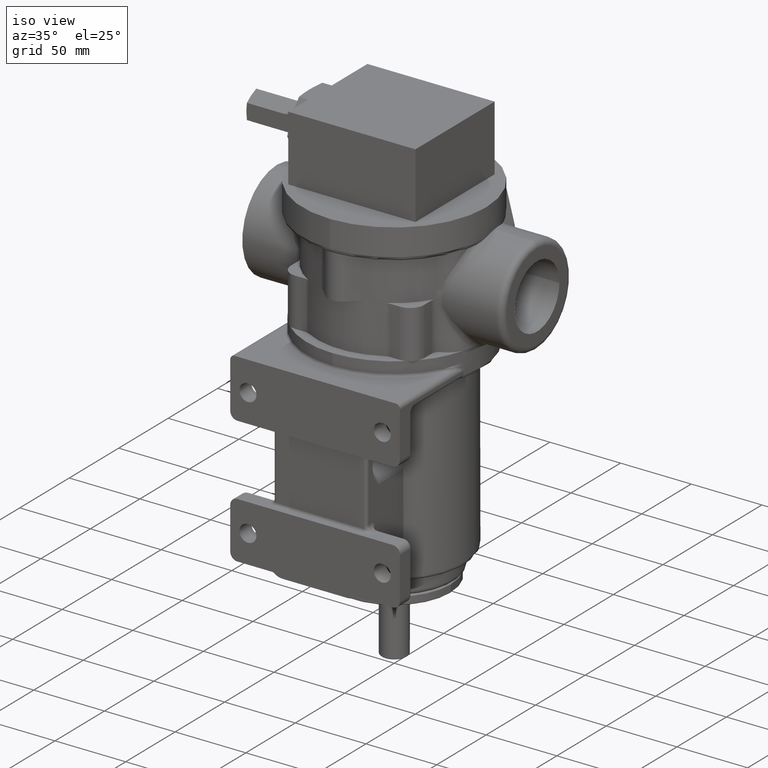
[diagram: clean part render]
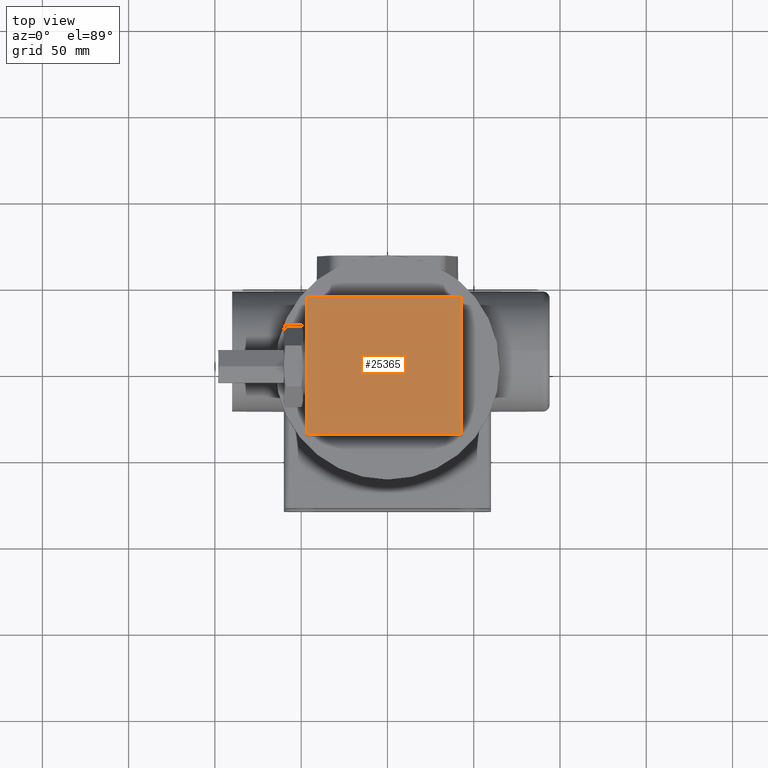
[diagram: tour spotlight — one face highlighted and labeled with its STEP entity id]
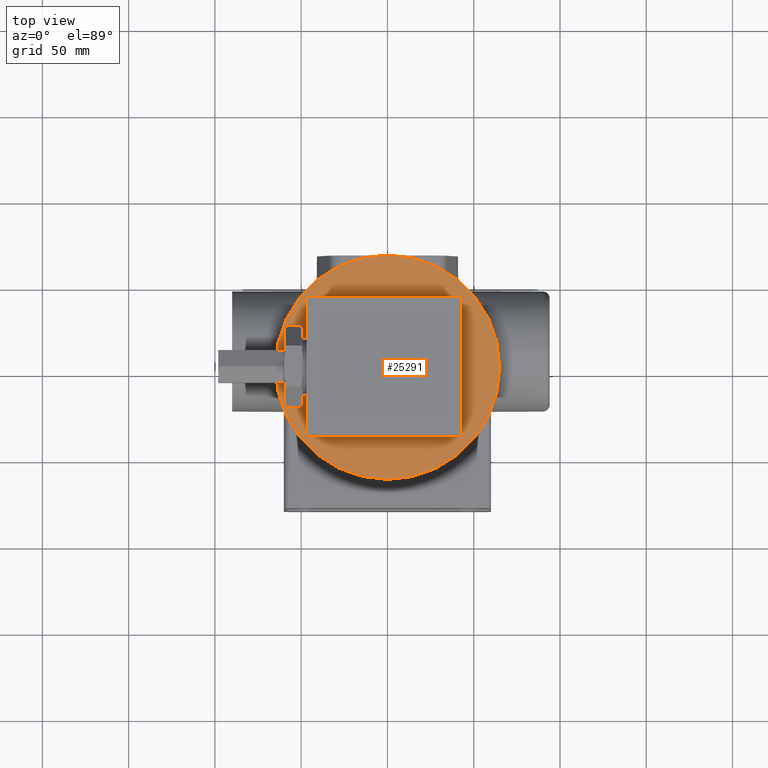
[diagram: tour spotlight — one face highlighted and labeled with its STEP entity id]
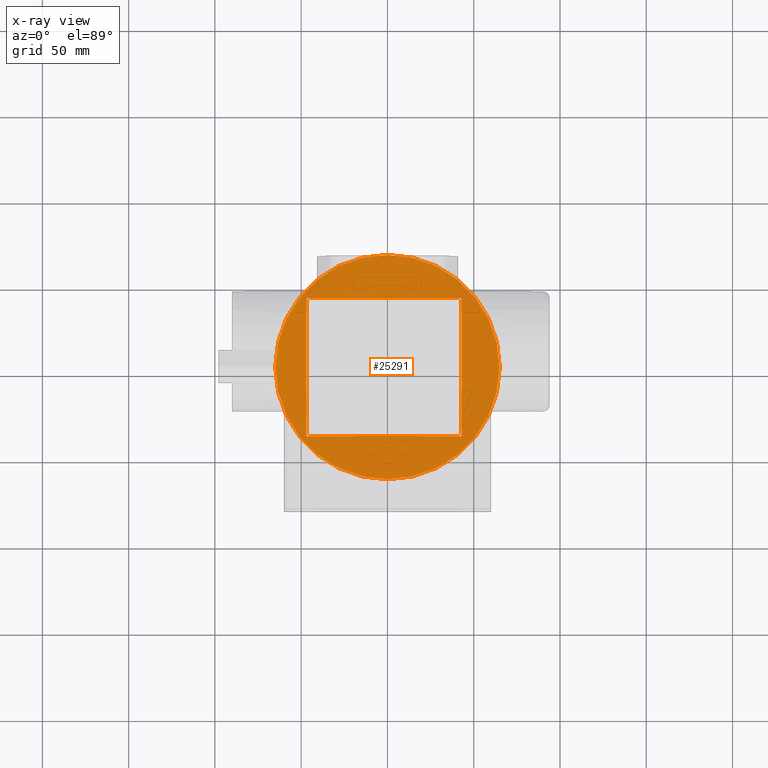
[diagram: x-ray of the same camera — body ghosted, this tour face saturated]
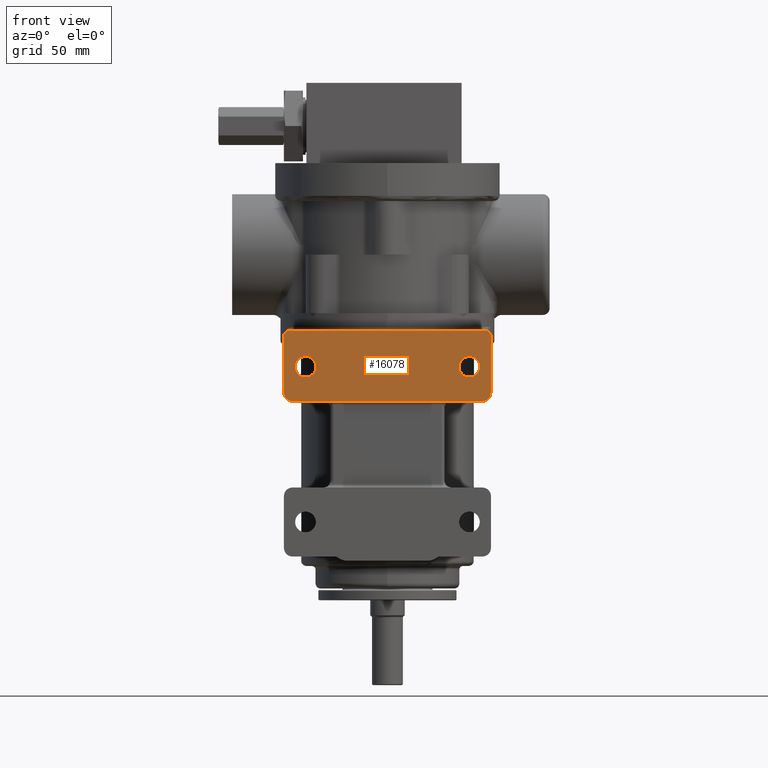
[diagram: tour spotlight — one face highlighted and labeled with its STEP entity id]
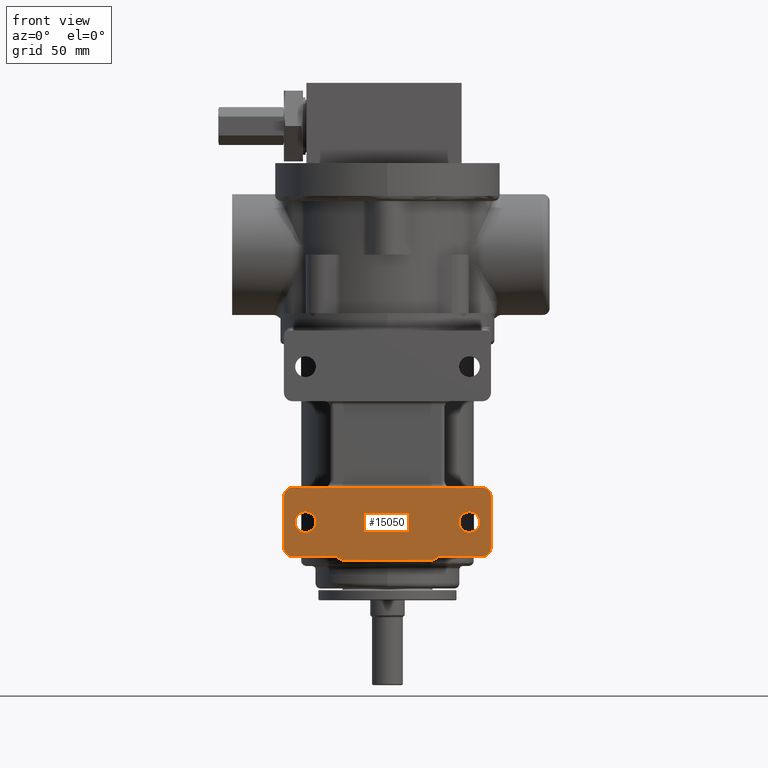
[diagram: tour spotlight — one face highlighted and labeled with its STEP entity id]
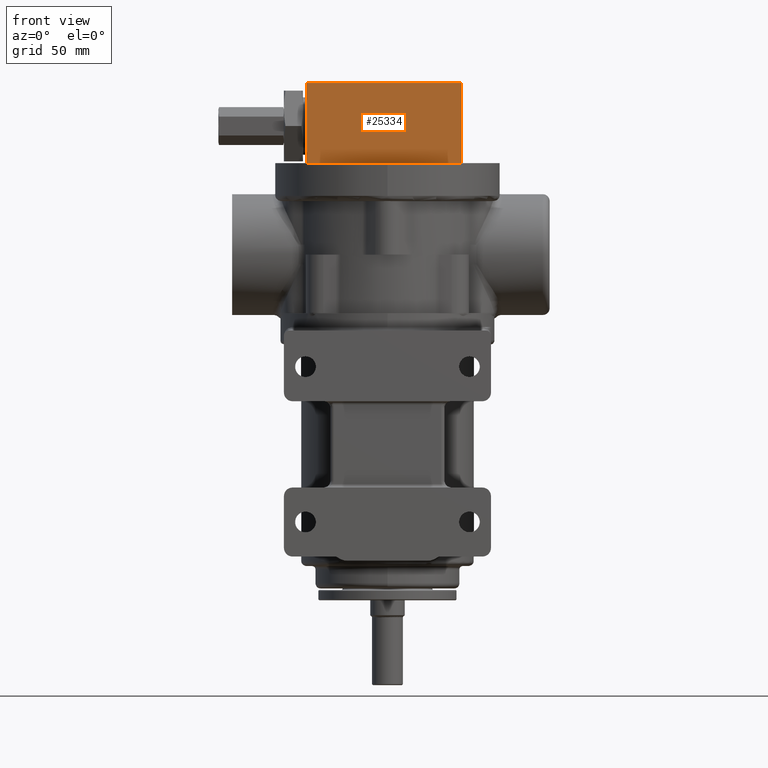
[diagram: tour spotlight — one face highlighted and labeled with its STEP entity id]
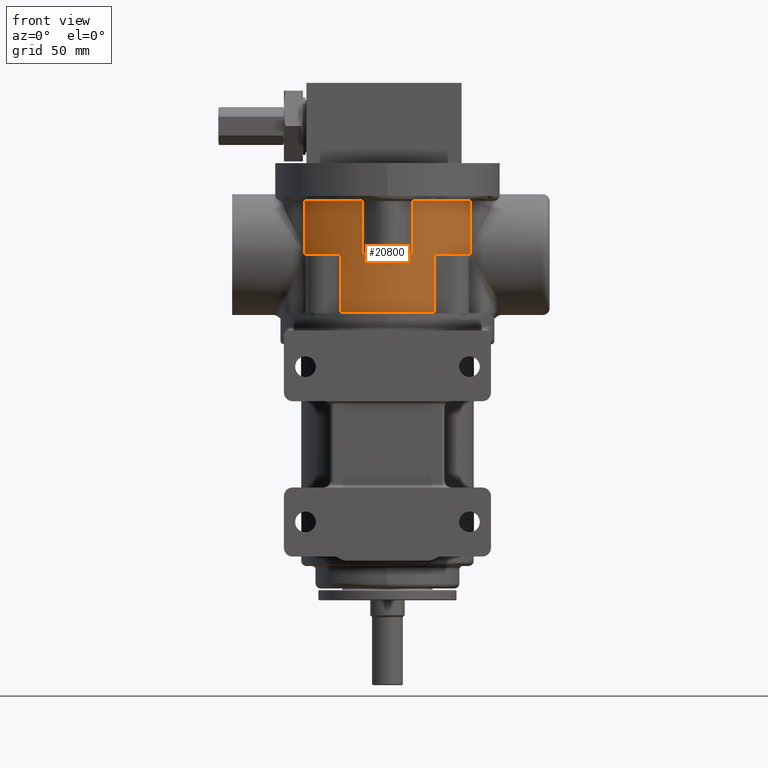
[diagram: tour spotlight — one face highlighted and labeled with its STEP entity id]
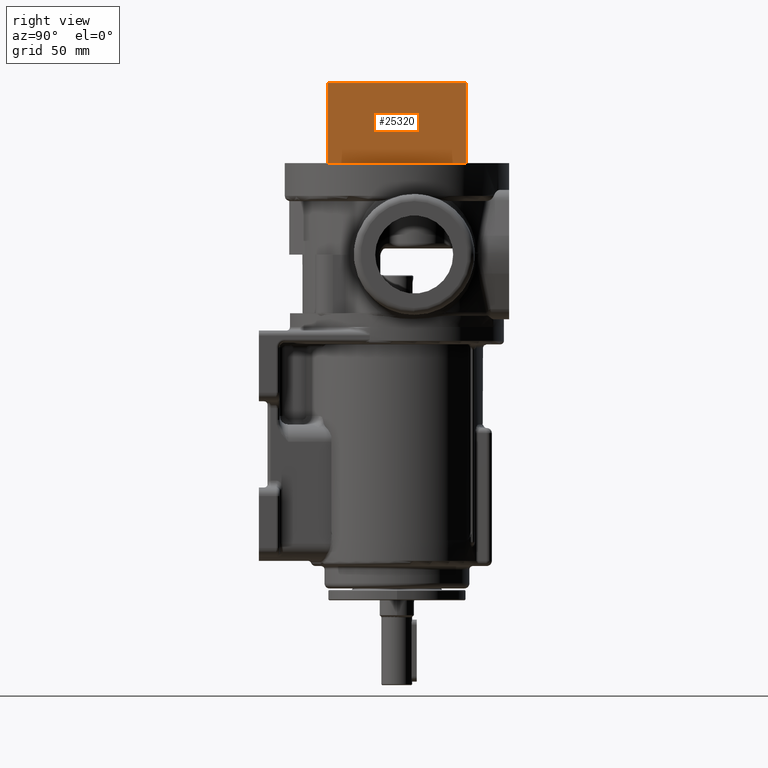
[diagram: tour spotlight — one face highlighted and labeled with its STEP entity id]
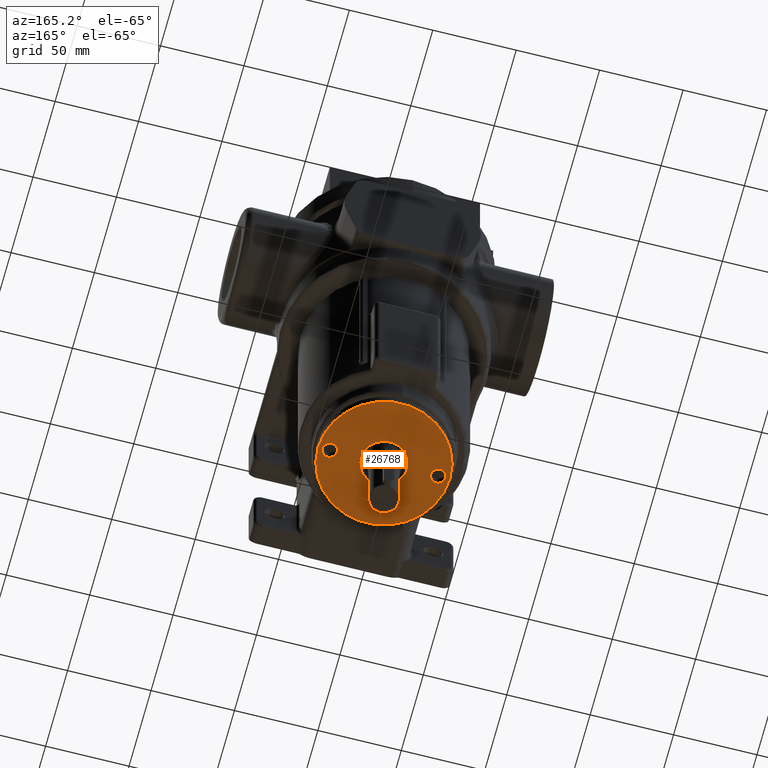
[diagram: tour spotlight — one face highlighted and labeled with its STEP entity id]
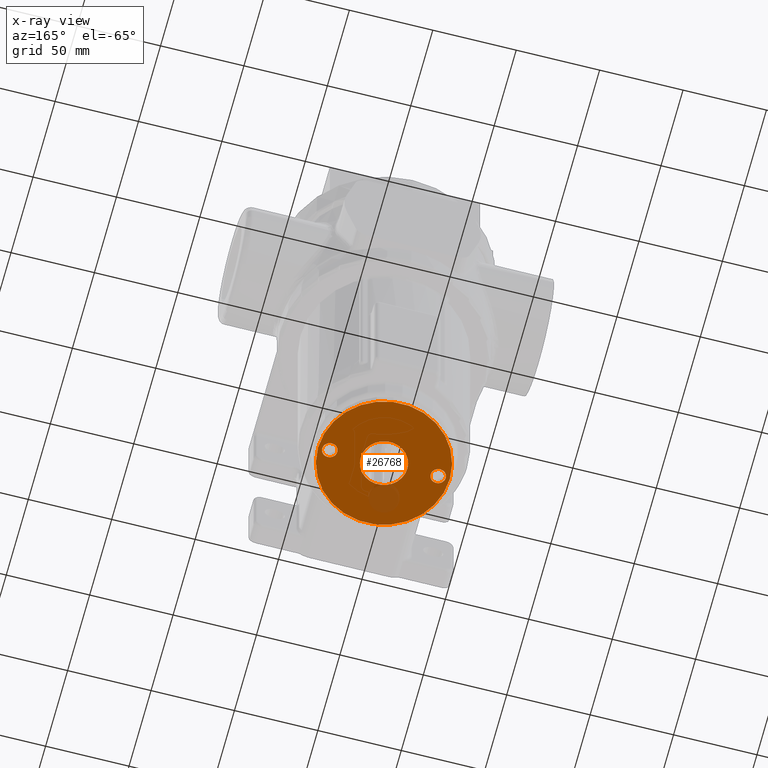
[diagram: x-ray of the same camera — body ghosted, this tour face saturated]
A machine part: a face-by-face anatomy tour. The part has 508 B-rep faces; the first image is the clean iso view, then the 8 largest visible faces are spotlighted one at a time (largest first), each with its STEP entity span.

Face 1 — top view, entity #25365. In plain terms, the highlighted planar face has unit normal (0, 0, 1).
Definition (entity closure, byte-faithful):
#9094=DIRECTION('',(-1.E0,0.E0,0.E0));
#9095=VECTOR('',#9094,9.E1);
#9096=CARTESIAN_POINT('',(4.3E1,4.E1,1.415E2));
#9097=LINE('',#9096,#9095);
#9098=DIRECTION('',(0.E0,1.E0,0.E0));
#9099=VECTOR('',#9098,8.E1);
#9100=CARTESIAN_POINT('',(4.3E1,-4.E1,1.415E2));
#9101=LINE('',#9100,#9099);
#9102=DIRECTION('',(1.E0,0.E0,0.E0));
#9103=VECTOR('',#9102,9.E1);
#9104=CARTESIAN_POINT('',(-4.7E1,-4.E1,1.415E2));
#9105=LINE('',#9104,#9103);
#9106=DIRECTION('',(0.E0,-1.E0,0.E0));
#9107=VECTOR('',#9106,8.E1);
#9108=CARTESIAN_POINT('',(-4.7E1,4.E1,1.415E2));
#9109=LINE('',#9108,#9107);
#12818=CARTESIAN_POINT('',(4.3E1,4.E1,1.415E2));
#12819=CARTESIAN_POINT('',(-4.7E1,4.E1,1.415E2));
#12820=VERTEX_POINT('',#12818);
#12821=VERTEX_POINT('',#12819);
#12822=CARTESIAN_POINT('',(-4.7E1,-4.E1,1.415E2));
#12823=VERTEX_POINT('',#12822);
#12824=CARTESIAN_POINT('',(4.3E1,-4.E1,1.415E2));
#12825=VERTEX_POINT('',#12824);
#25354=CARTESIAN_POINT('',(-2.E0,0.E0,1.415E2));
#25355=DIRECTION('',(0.E0,0.E0,1.E0));
#25356=DIRECTION('',(0.E0,-1.E0,0.E0));
#25357=AXIS2_PLACEMENT_3D('',#25354,#25355,#25356);
#25358=PLANE('',#25357);
#25359=ORIENTED_EDGE('',*,*,#25300,.F.);
#25360=ORIENTED_EDGE('',*,*,#25315,.F.);
#25361=ORIENTED_EDGE('',*,*,#25329,.F.);
#25362=ORIENTED_EDGE('',*,*,#25342,.F.);
#25363=EDGE_LOOP('',(#25359,#25360,#25361,#25362));
#25364=FACE_OUTER_BOUND('',#25363,.F.);
#25365=ADVANCED_FACE('',(#25364),#25358,.T.);
#25300=EDGE_CURVE('',#12820,#12821,#9097,.T.);
#25315=EDGE_CURVE('',#12825,#12820,#9101,.T.);
#25329=EDGE_CURVE('',#12823,#12825,#9105,.T.);
#25342=EDGE_CURVE('',#12821,#12823,#9109,.T.);

Face 2 — top view, entity #25291. An x-ray twin of the same camera follows (body ghosted, this face saturated) — the face is partly hidden behind the body. In plain terms, the highlighted planar face has unit normal (0, 0, 1).
Definition (entity closure, byte-faithful):
#5365=CARTESIAN_POINT('',(0.E0,0.E0,9.5E1));
#5366=DIRECTION('',(0.E0,0.E0,-1.E0));
#5367=DIRECTION('',(0.E0,1.E0,0.E0));
#5368=AXIS2_PLACEMENT_3D('',#5365,#5366,#5367);
#5808=CARTESIAN_POINT('',(0.E0,0.E0,9.5E1));
#5809=DIRECTION('',(0.E0,0.E0,1.E0));
#5810=DIRECTION('',(0.E0,1.E0,0.E0));
#5811=AXIS2_PLACEMENT_3D('',#5808,#5809,#5810);
#9052=DIRECTION('',(-1.E0,0.E0,0.E0));
#9053=VECTOR('',#9052,9.E1);
#9054=CARTESIAN_POINT('',(4.3E1,4.E1,9.5E1));
#9055=LINE('',#9054,#9053);
#9056=DIRECTION('',(0.E0,-1.E0,0.E0));
#9057=VECTOR('',#9056,8.E1);
#9058=CARTESIAN_POINT('',(-4.7E1,4.E1,9.5E1));
#9059=LINE('',#9058,#9057);
#9060=DIRECTION('',(1.E0,0.E0,0.E0));
#9061=VECTOR('',#9060,9.E1);
#9062=CARTESIAN_POINT('',(-4.7E1,-4.E1,9.5E1));
#9063=LINE('',#9062,#9061);
#9064=DIRECTION('',(0.E0,1.E0,0.E0));
#9065=VECTOR('',#9064,8.E1);
#9066=CARTESIAN_POINT('',(4.3E1,-4.E1,9.5E1));
#9067=LINE('',#9066,#9065);
#12694=CARTESIAN_POINT('',(0.E0,6.5E1,9.5E1));
#12695=CARTESIAN_POINT('',(0.E0,-6.5E1,9.5E1));
#12696=VERTEX_POINT('',#12694);
#12697=VERTEX_POINT('',#12695);
#12826=CARTESIAN_POINT('',(4.3E1,4.E1,9.5E1));
#12827=CARTESIAN_POINT('',(-4.7E1,4.E1,9.5E1));
#12828=VERTEX_POINT('',#12826);
#12829=VERTEX_POINT('',#12827);
#12830=CARTESIAN_POINT('',(-4.7E1,-4.E1,9.5E1));
#12831=VERTEX_POINT('',#12830);
#12832=CARTESIAN_POINT('',(4.3E1,-4.E1,9.5E1));
#12833=VERTEX_POINT('',#12832);
#25272=CARTESIAN_POINT('',(0.E0,0.E0,9.5E1));
#25273=DIRECTION('',(0.E0,0.E0,1.E0));
#25274=DIRECTION('',(0.E0,-1.E0,0.E0));
#25275=AXIS2_PLACEMENT_3D('',#25272,#25273,#25274);
#25276=PLANE('',#25275);
#25277=ORIENTED_EDGE('',*,*,#20872,.F.);
#25278=ORIENTED_EDGE('',*,*,#20037,.T.);
#25279=EDGE_LOOP('',(#25277,#25278));
#25280=FACE_OUTER_BOUND('',#25279,.F.);
#25282=ORIENTED_EDGE('',*,*,#25281,.T.);
#25284=ORIENTED_EDGE('',*,*,#25283,.T.);
#25286=ORIENTED_EDGE('',*,*,#25285,.T.);
#25288=ORIENTED_EDGE('',*,*,#25287,.T.);
#25289=EDGE_LOOP('',(#25282,#25284,#25286,#25288));
#25290=FACE_BOUND('',#25289,.F.);
#25291=ADVANCED_FACE('',(#25280,#25290),#25276,.T.);
#5369=CIRCLE('',#5368,6.5E1);
#5812=CIRCLE('',#5811,6.5E1);
#20037=EDGE_CURVE('',#12696,#12697,#5369,.T.);
#20872=EDGE_CURVE('',#12696,#12697,#5812,.T.);
#25281=EDGE_CURVE('',#12828,#12829,#9055,.T.);
#25283=EDGE_CURVE('',#12829,#12831,#9059,.T.);
#25285=EDGE_CURVE('',#12831,#12833,#9063,.T.);
#25287=EDGE_CURVE('',#12833,#12828,#9067,.T.);

Face 3 — front view, entity #16078. In plain terms, the highlighted planar face has unit normal (0, 1, 0).
Definition (entity closure, byte-faithful):
#2551=DIRECTION('',(0.E0,0.E0,1.E0));
#2552=VECTOR('',#2551,3.3E1);
#2553=CARTESIAN_POINT('',(-6.E1,-8.E1,-3.8E1));
#2554=LINE('',#2553,#2552);
#2580=CARTESIAN_POINT('',(-4.75E1,-8.E1,-2.3E1));
#2581=DIRECTION('',(0.E0,-1.E0,0.E0));
#2582=DIRECTION('',(0.E0,0.E0,1.E0));
#2583=AXIS2_PLACEMENT_3D('',#2580,#2581,#2582);
#2585=CARTESIAN_POINT('',(-4.75E1,-8.E1,-2.3E1));
#2586=DIRECTION('',(0.E0,-1.E0,0.E0));
#2587=DIRECTION('',(0.E0,0.E0,-1.E0));
#2588=AXIS2_PLACEMENT_3D('',#2585,#2586,#2587);
#2590=CARTESIAN_POINT('',(4.75E1,-8.E1,-2.3E1));
#2591=DIRECTION('',(0.E0,-1.E0,0.E0));
#2592=DIRECTION('',(0.E0,0.E0,1.E0));
#2593=AXIS2_PLACEMENT_3D('',#2590,#2591,#2592);
#2595=CARTESIAN_POINT('',(4.75E1,-8.E1,-2.3E1));
#2596=DIRECTION('',(0.E0,-1.E0,0.E0));
#2597=DIRECTION('',(0.E0,0.E0,-1.E0));
#2598=AXIS2_PLACEMENT_3D('',#2595,#2596,#2597);
#2600=DIRECTION('',(-1.E0,0.E0,0.E0));
#2601=VECTOR('',#2600,1.1E2);
#2602=CARTESIAN_POINT('',(5.5E1,-8.E1,-4.3E1));
#2603=LINE('',#2602,#2601);
#2680=CARTESIAN_POINT('',(5.5E1,-8.E1,-3.8E1));
#2681=DIRECTION('',(0.E0,-1.E0,0.E0));
#2682=DIRECTION('',(0.E0,0.E0,-1.E0));
#2683=AXIS2_PLACEMENT_3D('',#2680,#2681,#2682);
#2690=DIRECTION('',(0.E0,0.E0,-1.E0));
#2691=VECTOR('',#2690,3.3E1);
#2692=CARTESIAN_POINT('',(6.E1,-8.E1,-5.E0));
#2693=LINE('',#2692,#2691);
#2719=CARTESIAN_POINT('',(5.7E1,-8.E1,-5.E0));
#2720=DIRECTION('',(0.E0,-1.E0,0.E0));
#2721=DIRECTION('',(1.E0,0.E0,0.E0));
#2722=AXIS2_PLACEMENT_3D('',#2719,#2720,#2721);
#2762=DIRECTION('',(1.E0,0.E0,0.E0));
#2763=VECTOR('',#2762,1.14E2);
#2764=CARTESIAN_POINT('',(-5.7E1,-8.E1,-2.E0));
#2765=LINE('',#2764,#2763);
#2774=CARTESIAN_POINT('',(-5.7E1,-8.E1,-5.E0));
#2775=DIRECTION('',(0.E0,-1.E0,0.E0));
#2776=DIRECTION('',(0.E0,0.E0,1.E0));
#2777=AXIS2_PLACEMENT_3D('',#2774,#2775,#2776);
#4546=CARTESIAN_POINT('',(-5.5E1,-8.E1,-3.8E1));
#4547=DIRECTION('',(0.E0,-1.E0,0.E0));
#4548=DIRECTION('',(-1.E0,0.E0,0.E0));
#4549=AXIS2_PLACEMENT_3D('',#4546,#4547,#4548);
#11985=CARTESIAN_POINT('',(5.5E1,-8.E1,-4.3E1));
#11986=CARTESIAN_POINT('',(-5.5E1,-8.E1,-4.3E1));
#11987=VERTEX_POINT('',#11985);
#11988=VERTEX_POINT('',#11986);
#11989=CARTESIAN_POINT('',(-6.E1,-8.E1,-3.8E1));
#11990=CARTESIAN_POINT('',(-6.E1,-8.E1,-5.E0));
#11991=VERTEX_POINT('',#11989);
#11992=VERTEX_POINT('',#11990);
#11993=CARTESIAN_POINT('',(-5.7E1,-8.E1,-2.E0));
#11994=CARTESIAN_POINT('',(5.7E1,-8.E1,-2.E0));
#11995=VERTEX_POINT('',#11993);
#11996=VERTEX_POINT('',#11994);
#11997=CARTESIAN_POINT('',(6.E1,-8.E1,-5.E0));
#11998=CARTESIAN_POINT('',(6.E1,-8.E1,-3.8E1));
#11999=VERTEX_POINT('',#11997);
#12000=VERTEX_POINT('',#11998);
#12017=CARTESIAN_POINT('',(-4.75E1,-8.E1,-1.7E1));
#12018=CARTESIAN_POINT('',(-4.75E1,-8.E1,-2.9E1));
#12019=VERTEX_POINT('',#12017);
#12020=VERTEX_POINT('',#12018);
#12033=CARTESIAN_POINT('',(4.75E1,-8.E1,-1.7E1));
#12034=CARTESIAN_POINT('',(4.75E1,-8.E1,-2.9E1));
#12035=VERTEX_POINT('',#12033);
#12036=VERTEX_POINT('',#12034);
#16044=CARTESIAN_POINT('',(0.E0,-8.E1,0.E0));
#16045=DIRECTION('',(0.E0,1.E0,0.E0));
#16046=DIRECTION('',(-1.E0,0.E0,0.E0));
#16047=AXIS2_PLACEMENT_3D('',#16044,#16045,#16046);
#16048=PLANE('',#16047);
#16050=ORIENTED_EDGE('',*,*,#16049,.T.);
#16052=ORIENTED_EDGE('',*,*,#16051,.F.);
#16053=ORIENTED_EDGE('',*,*,#16028,.T.);
#16055=ORIENTED_EDGE('',*,*,#16054,.F.);
#16057=ORIENTED_EDGE('',*,*,#16056,.T.);
#16059=ORIENTED_EDGE('',*,*,#16058,.F.);
#16061=ORIENTED_EDGE('',*,*,#16060,.T.);
#16063=ORIENTED_EDGE('',*,*,#16062,.F.);
#16064=EDGE_LOOP('',(#16050,#16052,#16053,#16055,#16057,#16059,#16061,#16063));
#16065=FACE_OUTER_BOUND('',#16064,.F.);
#16067=ORIENTED_EDGE('',*,*,#16066,.T.);
#16069=ORIENTED_EDGE('',*,*,#16068,.T.);
#16070=EDGE_LOOP('',(#16067,#16069));
#16071=FACE_BOUND('',#16070,.F.);
#16073=ORIENTED_EDGE('',*,*,#16072,.T.);
#16075=ORIENTED_EDGE('',*,*,#16074,.T.);
#16076=EDGE_LOOP('',(#16073,#16075));
#16077=FACE_BOUND('',#16076,.F.);
#16078=ADVANCED_FACE('',(#16065,#16071,#16077),#16048,.F.);
#2584=CIRCLE('',#2583,6.E0);
#2589=CIRCLE('',#2588,6.E0);
#2594=CIRCLE('',#2593,6.E0);
#2599=CIRCLE('',#2598,6.E0);
#2684=CIRCLE('',#2683,5.E0);
#2723=CIRCLE('',#2722,3.E0);
#2778=CIRCLE('',#2777,3.E0);
#4550=CIRCLE('',#4549,5.E0);
#16028=EDGE_CURVE('',#11991,#11992,#2554,.T.);
#16049=EDGE_CURVE('',#11987,#11988,#2603,.T.);
#16051=EDGE_CURVE('',#11991,#11988,#4550,.T.);
#16054=EDGE_CURVE('',#11995,#11992,#2778,.T.);
#16056=EDGE_CURVE('',#11995,#11996,#2765,.T.);
#16058=EDGE_CURVE('',#11999,#11996,#2723,.T.);
#16060=EDGE_CURVE('',#11999,#12000,#2693,.T.);
#16062=EDGE_CURVE('',#11987,#12000,#2684,.T.);
#16066=EDGE_CURVE('',#12019,#12020,#2584,.T.);
#16068=EDGE_CURVE('',#12020,#12019,#2589,.T.);
#16072=EDGE_CURVE('',#12035,#12036,#2594,.T.);
#16074=EDGE_CURVE('',#12036,#12035,#2599,.T.);

Face 4 — front view, entity #15050. In plain terms, the highlighted planar face has unit normal (0, 1, 0).
Definition (entity closure, byte-faithful):
#1702=CARTESIAN_POINT('',(2.3E1,-8.E1,-1.255E2));
#1703=DIRECTION('',(0.E0,-1.E0,0.E0));
#1704=DIRECTION('',(0.E0,0.E0,-1.E0));
#1705=AXIS2_PLACEMENT_3D('',#1702,#1703,#1704);
#1791=CARTESIAN_POINT('',(-4.75E1,-8.E1,-1.13E2));
#1792=DIRECTION('',(0.E0,-1.E0,0.E0));
#1793=DIRECTION('',(0.E0,0.E0,1.E0));
#1794=AXIS2_PLACEMENT_3D('',#1791,#1792,#1793);
#1796=CARTESIAN_POINT('',(-4.75E1,-8.E1,-1.13E2));
#1797=DIRECTION('',(0.E0,-1.E0,0.E0));
#1798=DIRECTION('',(0.E0,0.E0,-1.E0));
#1799=AXIS2_PLACEMENT_3D('',#1796,#1797,#1798);
#1801=CARTESIAN_POINT('',(4.75E1,-8.E1,-1.13E2));
#1802=DIRECTION('',(0.E0,-1.E0,0.E0));
#1803=DIRECTION('',(0.E0,0.E0,1.E0));
#1804=AXIS2_PLACEMENT_3D('',#1801,#1802,#1803);
#1806=CARTESIAN_POINT('',(4.75E1,-8.E1,-1.13E2));
#1807=DIRECTION('',(0.E0,-1.E0,0.E0));
#1808=DIRECTION('',(0.E0,0.E0,-1.E0));
#1809=AXIS2_PLACEMENT_3D('',#1806,#1807,#1808);
#1811=DIRECTION('',(-1.E0,0.E0,0.E0));
#1812=VECTOR('',#1811,2.466856085069E1);
#1813=CARTESIAN_POINT('',(5.5E1,-8.E1,-1.33E2));
#1814=LINE('',#1813,#1812);
#1827=CARTESIAN_POINT('',(5.5E1,-8.E1,-1.28E2));
#1828=DIRECTION('',(0.E0,-1.E0,0.E0));
#1829=DIRECTION('',(0.E0,0.E0,-1.E0));
#1830=AXIS2_PLACEMENT_3D('',#1827,#1828,#1829);
#1837=DIRECTION('',(0.E0,0.E0,-1.E0));
#1838=VECTOR('',#1837,3.E1);
#1839=CARTESIAN_POINT('',(6.E1,-8.E1,-9.8E1));
#1840=LINE('',#1839,#1838);
#1853=CARTESIAN_POINT('',(5.5E1,-8.E1,-9.8E1));
#1854=DIRECTION('',(0.E0,-1.E0,0.E0));
#1855=DIRECTION('',(1.E0,0.E0,0.E0));
#1856=AXIS2_PLACEMENT_3D('',#1853,#1854,#1855);
#1863=DIRECTION('',(1.E0,0.E0,0.E0));
#1864=VECTOR('',#1863,1.1E2);
#1865=CARTESIAN_POINT('',(-5.5E1,-8.E1,-9.3E1));
#1866=LINE('',#1865,#1864);
#1943=CARTESIAN_POINT('',(-5.5E1,-8.E1,-9.8E1));
#1944=DIRECTION('',(0.E0,-1.E0,0.E0));
#1945=DIRECTION('',(0.E0,0.E0,1.E0));
#1946=AXIS2_PLACEMENT_3D('',#1943,#1944,#1945);
#1953=DIRECTION('',(0.E0,0.E0,1.E0));
#1954=VECTOR('',#1953,3.E1);
#1955=CARTESIAN_POINT('',(-6.E1,-8.E1,-1.28E2));
#1956=LINE('',#1955,#1954);
#1969=CARTESIAN_POINT('',(-5.5E1,-8.E1,-1.28E2));
#1970=DIRECTION('',(0.E0,-1.E0,0.E0));
#1971=DIRECTION('',(-1.E0,0.E0,0.E0));
#1972=AXIS2_PLACEMENT_3D('',#1969,#1970,#1971);
#1979=DIRECTION('',(-1.E0,0.E0,0.E0));
#1980=VECTOR('',#1979,2.466856085069E1);
#1981=CARTESIAN_POINT('',(-3.033143914931E1,-8.E1,-1.33E2));
#1982=LINE('',#1981,#1980);
#1995=CARTESIAN_POINT('',(-3.033143914931E1,-8.E1,-1.35E2));
#1996=DIRECTION('',(0.E0,-1.E0,0.E0));
#1997=DIRECTION('',(6.109532584808E-1,0.E0,7.916666697239E-1));
#1998=AXIS2_PLACEMENT_3D('',#1995,#1996,#1997);
#2014=CARTESIAN_POINT('',(-2.3E1,-8.E1,-1.255E2));
#2015=DIRECTION('',(0.E0,1.E0,0.E0));
#2016=DIRECTION('',(0.E0,0.E0,-1.E0));
#2017=AXIS2_PLACEMENT_3D('',#2014,#2015,#2016);
#2103=DIRECTION('',(-1.E0,0.E0,0.E0));
#2104=VECTOR('',#2103,4.6E1);
#2105=CARTESIAN_POINT('',(2.3E1,-8.E1,-1.355E2));
#2106=LINE('',#2105,#2104);
#5098=CARTESIAN_POINT('',(3.033143914931E1,-8.E1,-1.35E2));
#5099=DIRECTION('',(0.E0,1.E0,0.E0));
#5100=DIRECTION('',(-6.109532584808E-1,0.E0,7.916666697239E-1));
#5101=AXIS2_PLACEMENT_3D('',#5098,#5099,#5100);
#11965=CARTESIAN_POINT('',(5.5E1,-8.E1,-1.33E2));
#11966=CARTESIAN_POINT('',(3.033143914931E1,-8.E1,-1.33E2));
#11967=VERTEX_POINT('',#11965);
#11968=VERTEX_POINT('',#11966);
#11969=CARTESIAN_POINT('',(-3.033143914931E1,-8.E1,-1.33E2));
#11970=CARTESIAN_POINT('',(-5.5E1,-8.E1,-1.33E2));
#11971=VERTEX_POINT('',#11969);
#11972=VERTEX_POINT('',#11970);
#11973=CARTESIAN_POINT('',(-6.E1,-8.E1,-1.28E2));
#11974=CARTESIAN_POINT('',(-6.E1,-8.E1,-9.8E1));
#11975=VERTEX_POINT('',#11973);
#11976=VERTEX_POINT('',#11974);
#11977=CARTESIAN_POINT('',(-5.5E1,-8.E1,-9.3E1));
#11978=CARTESIAN_POINT('',(5.5E1,-8.E1,-9.3E1));
#11979=VERTEX_POINT('',#11977);
#11980=VERTEX_POINT('',#11978);
#11981=CARTESIAN_POINT('',(6.E1,-8.E1,-9.8E1));
#11982=CARTESIAN_POINT('',(6.E1,-8.E1,-1.28E2));
#11983=VERTEX_POINT('',#11981);
#11984=VERTEX_POINT('',#11982);
#12001=CARTESIAN_POINT('',(2.3E1,-8.E1,-1.355E2));
#12002=CARTESIAN_POINT('',(-2.3E1,-8.E1,-1.355E2));
#12003=VERTEX_POINT('',#12001);
#12004=VERTEX_POINT('',#12002);
#12005=CARTESIAN_POINT('',(-2.910953263235E1,-8.E1,-1.334166666606E2));
#12006=VERTEX_POINT('',#12005);
#12007=CARTESIAN_POINT('',(2.910953263235E1,-8.E1,-1.334166666606E2));
#12008=VERTEX_POINT('',#12007);
#12025=CARTESIAN_POINT('',(-4.75E1,-8.E1,-1.07E2));
#12026=CARTESIAN_POINT('',(-4.75E1,-8.E1,-1.19E2));
#12027=VERTEX_POINT('',#12025);
#12028=VERTEX_POINT('',#12026);
#12041=CARTESIAN_POINT('',(4.75E1,-8.E1,-1.07E2));
#12042=CARTESIAN_POINT('',(4.75E1,-8.E1,-1.19E2));
#12043=VERTEX_POINT('',#12041);
#12044=VERTEX_POINT('',#12042);
#15004=CARTESIAN_POINT('',(0.E0,-8.E1,0.E0));
#15005=DIRECTION('',(0.E0,1.E0,0.E0));
#15006=DIRECTION('',(-1.E0,0.E0,0.E0));
#15007=AXIS2_PLACEMENT_3D('',#15004,#15005,#15006);
#15008=PLANE('',#15007);
#15010=ORIENTED_EDGE('',*,*,#15009,.T.);
#15012=ORIENTED_EDGE('',*,*,#15011,.F.);
#15013=ORIENTED_EDGE('',*,*,#14986,.F.);
#15015=ORIENTED_EDGE('',*,*,#15014,.T.);
#15017=ORIENTED_EDGE('',*,*,#15016,.T.);
#15019=ORIENTED_EDGE('',*,*,#15018,.T.);
#15021=ORIENTED_EDGE('',*,*,#15020,.T.);
#15023=ORIENTED_EDGE('',*,*,#15022,.F.);
#15025=ORIENTED_EDGE('',*,*,#15024,.T.);
#15027=ORIENTED_EDGE('',*,*,#15026,.F.);
#15029=ORIENTED_EDGE('',*,*,#15028,.T.);
#15031=ORIENTED_EDGE('',*,*,#15030,.F.);
#15033=ORIENTED_EDGE('',*,*,#15032,.T.);
#15035=ORIENTED_EDGE('',*,*,#15034,.F.);
#15036=EDGE_LOOP('',(#15010,#15012,#15013,#15015,#15017,#15019,#15021,#15023,
#15025,#15027,#15029,#15031,#15033,#15035));
#15037=FACE_OUTER_BOUND('',#15036,.F.);
#15039=ORIENTED_EDGE('',*,*,#15038,.T.);
#15041=ORIENTED_EDGE('',*,*,#15040,.T.);
#15042=EDGE_LOOP('',(#15039,#15041));
#15043=FACE_BOUND('',#15042,.F.);
#15045=ORIENTED_EDGE('',*,*,#15044,.T.);
#15047=ORIENTED_EDGE('',*,*,#15046,.T.);
#15048=EDGE_LOOP('',(#15045,#15047));
#15049=FACE_BOUND('',#15048,.F.);
#15050=ADVANCED_FACE('',(#15037,#15043,#15049),#15008,.F.);
#1706=CIRCLE('',#1705,1.E1);
#1795=CIRCLE('',#1794,6.E0);
#1800=CIRCLE('',#1799,6.E0);
#1805=CIRCLE('',#1804,6.E0);
#1810=CIRCLE('',#1809,6.E0);
#1831=CIRCLE('',#1830,5.E0);
#1857=CIRCLE('',#1856,5.E0);
#1947=CIRCLE('',#1946,5.E0);
#1973=CIRCLE('',#1972,5.E0);
#1999=CIRCLE('',#1998,2.E0);
#2018=CIRCLE('',#2017,1.E1);
#5102=CIRCLE('',#5101,2.E0);
#14986=EDGE_CURVE('',#12003,#12008,#1706,.T.);
#15009=EDGE_CURVE('',#11967,#11968,#1814,.T.);
#15011=EDGE_CURVE('',#12008,#11968,#5102,.T.);
#15014=EDGE_CURVE('',#12003,#12004,#2106,.T.);
#15016=EDGE_CURVE('',#12004,#12006,#2018,.T.);
#15018=EDGE_CURVE('',#12006,#11971,#1999,.T.);
#15020=EDGE_CURVE('',#11971,#11972,#1982,.T.);
#15022=EDGE_CURVE('',#11975,#11972,#1973,.T.);
#15024=EDGE_CURVE('',#11975,#11976,#1956,.T.);
#15026=EDGE_CURVE('',#11979,#11976,#1947,.T.);
#15028=EDGE_CURVE('',#11979,#11980,#1866,.T.);
#15030=EDGE_CURVE('',#11983,#11980,#1857,.T.);
#15032=EDGE_CURVE('',#11983,#11984,#1840,.T.);
#15034=EDGE_CURVE('',#11967,#11984,#1831,.T.);
#15038=EDGE_CURVE('',#12027,#12028,#1795,.T.);
#15040=EDGE_CURVE('',#12028,#12027,#1800,.T.);
#15044=EDGE_CURVE('',#12043,#12044,#1805,.T.);
#15046=EDGE_CURVE('',#12044,#12043,#1810,.T.);

Face 5 — front view, entity #25334. In plain terms, the highlighted planar face has unit normal (0, -1, 0).
Definition (entity closure, byte-faithful):
#9060=DIRECTION('',(1.E0,0.E0,0.E0));
#9061=VECTOR('',#9060,9.E1);
#9062=CARTESIAN_POINT('',(-4.7E1,-4.E1,9.5E1));
#9063=LINE('',#9062,#9061);
#9072=DIRECTION('',(0.E0,0.E0,1.E0));
#9073=VECTOR('',#9072,4.65E1);
#9074=CARTESIAN_POINT('',(4.3E1,-4.E1,9.5E1));
#9075=LINE('',#9074,#9073);
#9076=DIRECTION('',(0.E0,0.E0,1.E0));
#9077=VECTOR('',#9076,4.65E1);
#9078=CARTESIAN_POINT('',(-4.7E1,-4.E1,9.5E1));
#9079=LINE('',#9078,#9077);
#9102=DIRECTION('',(1.E0,0.E0,0.E0));
#9103=VECTOR('',#9102,9.E1);
#9104=CARTESIAN_POINT('',(-4.7E1,-4.E1,1.415E2));
#9105=LINE('',#9104,#9103);
#12822=CARTESIAN_POINT('',(-4.7E1,-4.E1,1.415E2));
#12823=VERTEX_POINT('',#12822);
#12824=CARTESIAN_POINT('',(4.3E1,-4.E1,1.415E2));
#12825=VERTEX_POINT('',#12824);
#12830=CARTESIAN_POINT('',(-4.7E1,-4.E1,9.5E1));
#12831=VERTEX_POINT('',#12830);
#12832=CARTESIAN_POINT('',(4.3E1,-4.E1,9.5E1));
#12833=VERTEX_POINT('',#12832);
#25321=CARTESIAN_POINT('',(-4.7E1,-4.E1,9.25E1));
#25322=DIRECTION('',(0.E0,-1.E0,0.E0));
#25323=DIRECTION('',(1.E0,0.E0,0.E0));
#25324=AXIS2_PLACEMENT_3D('',#25321,#25322,#25323);
#25325=PLANE('',#25324);
#25326=ORIENTED_EDGE('',*,*,#25285,.F.);
#25328=ORIENTED_EDGE('',*,*,#25327,.T.);
#25330=ORIENTED_EDGE('',*,*,#25329,.T.);
#25331=ORIENTED_EDGE('',*,*,#25313,.F.);
#25332=EDGE_LOOP('',(#25326,#25328,#25330,#25331));
#25333=FACE_OUTER_BOUND('',#25332,.F.);
#25334=ADVANCED_FACE('',(#25333),#25325,.T.);
#25285=EDGE_CURVE('',#12831,#12833,#9063,.T.);
#25313=EDGE_CURVE('',#12833,#12825,#9075,.T.);
#25327=EDGE_CURVE('',#12831,#12823,#9079,.T.);
#25329=EDGE_CURVE('',#12823,#12825,#9105,.T.);

Face 6 — front view, entity #20800. In plain terms, the highlighted cylindrical surface (partial cylindrical patch) has radius 55.0008 mm, axis along (0, 0, -1).
Definition (entity closure, byte-faithful):
#5655=CARTESIAN_POINT('',(0.E0,0.E0,7.3E1));
#5656=DIRECTION('',(0.E0,0.E0,-1.E0));
#5657=DIRECTION('',(8.751433928889E-1,-4.838636604281E-1,0.E0));
#5658=AXIS2_PLACEMENT_3D('',#5655,#5656,#5657);
#5660=CARTESIAN_POINT('',(4.813356293082E1,-2.661287525953E1,4.791829889625E1));
#5661=CARTESIAN_POINT('',(4.810518420799E1,-2.666420264263E1,4.755966763371E1));
#5662=CARTESIAN_POINT('',(4.805348580512E1,-2.675732298910E1,4.684232017406E1));
#5663=CARTESIAN_POINT('',(4.799125834551E1,-2.686872200678E1,4.576580659671E1));
#5664=CARTESIAN_POINT('',(4.794451284951E1,-2.695200824866E1,4.468962930746E1));
#5665=CARTESIAN_POINT('',(4.791331119180E1,-2.700741234823E1,4.361366931318E1));
#5666=CARTESIAN_POINT('',(4.789769998290E1,-2.703507673908E1,4.253785875846E1));
#5667=CARTESIAN_POINT('',(4.789770012738E1,-2.703507648326E1,4.146212151857E1));
#5668=CARTESIAN_POINT('',(4.791331164581E1,-2.700741154309E1,4.038631058449E1));
#5669=CARTESIAN_POINT('',(4.794451350309E1,-2.695200708640E1,3.931035333045E1));
#5670=CARTESIAN_POINT('',(4.799125921928E1,-2.686872044684E1,3.823417634402E1));
#5671=CARTESIAN_POINT('',(4.805348668908E1,-2.675732140012E1,3.715766681340E1));
#5672=CARTESIAN_POINT('',(4.810518460905E1,-2.666420191840E1,3.644032732006E1));
#5673=CARTESIAN_POINT('',(4.813356293082E1,-2.661287525953E1,3.608170110375E1));
#5675=CARTESIAN_POINT('',(0.E0,0.E0,8.5E0));
#5676=DIRECTION('',(0.E0,0.E0,1.E0));
#5677=DIRECTION('',(8.687388104602E-1,-4.952705111352E-1,0.E0));
#5678=AXIS2_PLACEMENT_3D('',#5675,#5676,#5677);
#5680=DIRECTION('',(0.E0,0.E0,1.E0));
#5681=VECTOR('',#5680,3.35E1);
#5682=CARTESIAN_POINT('',(4.778130594770E1,-2.724026086378E1,8.5E0));
#5683=LINE('',#5682,#5681);
#5684=DIRECTION('',(0.E0,0.E0,-1.E0));
#5685=VECTOR('',#5684,3.35E1);
#5686=CARTESIAN_POINT('',(2.724829878611E1,-4.777672260900E1,4.2E1));
#5687=LINE('',#5686,#5685);
#5688=CARTESIAN_POINT('',(0.E0,0.E0,8.5E0));
#5689=DIRECTION('',(0.E0,0.E0,1.E0));
#5690=DIRECTION('',(-4.954166531241E-1,-8.686554782003E-1,0.E0));
#5691=AXIS2_PLACEMENT_3D('',#5688,#5689,#5690);
#5693=DIRECTION('',(0.E0,0.E0,1.E0));
#5694=VECTOR('',#5693,3.35E1);
#5695=CARTESIAN_POINT('',(-2.724829878611E1,-4.777672260900E1,8.5E0));
#5696=LINE('',#5695,#5694);
#5697=DIRECTION('',(0.E0,0.E0,-1.E0));
#5698=VECTOR('',#5697,3.35E1);
#5699=CARTESIAN_POINT('',(-4.778130594770E1,-2.724026086378E1,4.2E1));
#5700=LINE('',#5699,#5698);
#5701=CARTESIAN_POINT('',(0.E0,0.E0,8.5E0));
#5702=DIRECTION('',(0.E0,0.E0,1.E0));
#5703=DIRECTION('',(-8.751433928889E-1,-4.838636604281E-1,0.E0));
#5704=AXIS2_PLACEMENT_3D('',#5701,#5702,#5703);
#5706=CARTESIAN_POINT('',(-4.813356293082E1,-2.661287525953E1,
3.608170110375E1));
#5707=CARTESIAN_POINT('',(-4.810518420098E1,-2.666420265518E1,
3.644033245410E1));
#5708=CARTESIAN_POINT('',(-4.805348578800E1,-2.675732301994E1,
3.715768008449E1));
#5709=CARTESIAN_POINT('',(-4.799125832318E1,-2.686872204667E1,
3.823419381769E1));
#5710=CARTESIAN_POINT('',(-4.794451282119E1,-2.695200829906E1,
3.931037141447E1));
#5711=CARTESIAN_POINT('',(-4.791331116519E1,-2.700741239542E1,
4.038633180211E1));
#5712=CARTESIAN_POINT('',(-4.789769997061E1,-2.703507676085E1,
4.146214265476E1));
#5713=CARTESIAN_POINT('',(-4.789770013807E1,-2.703507646433E1,
4.253788023676E1));
#5714=CARTESIAN_POINT('',(-4.791331169205E1,-2.700741146110E1,
4.361369159427E1));
#5715=CARTESIAN_POINT('',(-4.794451358496E1,-2.695200694086E1,
4.468964889450E1));
#5716=CARTESIAN_POINT('',(-4.799125934771E1,-2.686872021757E1,
4.576582618492E1));
#5717=CARTESIAN_POINT('',(-4.805348682285E1,-2.675732115973E1,
4.684233514505E1));
#5718=CARTESIAN_POINT('',(-4.810518467042E1,-2.666420180742E1,
4.755967345229E1));
#5719=CARTESIAN_POINT('',(-4.813356293082E1,-2.661287525953E1,
4.791829889625E1));
#5721=CARTESIAN_POINT('',(0.E0,0.E0,7.3E1));
#5722=DIRECTION('',(0.E0,0.E0,-1.E0));
#5723=DIRECTION('',(-2.640204975087E-1,-9.645170692607E-1,0.E0));
#5724=AXIS2_PLACEMENT_3D('',#5721,#5722,#5723);
#5726=DIRECTION('',(0.E0,0.E0,-1.E0));
#5727=VECTOR('',#5726,3.1E1);
#5728=CARTESIAN_POINT('',(-1.452133140137E1,-5.304918420038E1,7.3E1));
#5729=LINE('',#5728,#5727);
#5730=DIRECTION('',(0.E0,0.E0,1.E0));
#5731=VECTOR('',#5730,3.1E1);
#5732=CARTESIAN_POINT('',(1.452133140137E1,-5.304918420038E1,4.2E1));
#5733=LINE('',#5732,#5731);
#6113=DIRECTION('',(0.E0,0.E0,-1.E0));
#6114=VECTOR('',#6113,2.508170110375E1);
#6115=CARTESIAN_POINT('',(-4.813356293082E1,-2.661287525953E1,7.3E1));
#6116=LINE('',#6115,#6114);
#6147=DIRECTION('',(0.E0,0.E0,-1.E0));
#6148=VECTOR('',#6147,2.758170110375E1);
#6149=CARTESIAN_POINT('',(-4.813356293082E1,-2.661287525953E1,
3.608170110375E1));
#6150=LINE('',#6149,#6148);
#8100=DIRECTION('',(0.E0,0.E0,1.E0));
#8101=VECTOR('',#8100,2.758170110375E1);
#8102=CARTESIAN_POINT('',(4.813356293082E1,-2.661287525953E1,8.5E0));
#8103=LINE('',#8102,#8101);
#8162=CARTESIAN_POINT('',(0.E0,0.E0,4.2E1));
#8163=DIRECTION('',(0.E0,0.E0,1.E0));
#8164=DIRECTION('',(4.954166531241E-1,-8.686554782003E-1,0.E0));
#8165=AXIS2_PLACEMENT_3D('',#8162,#8163,#8164);
#8211=DIRECTION('',(0.E0,0.E0,1.E0));
#8212=VECTOR('',#8211,2.508170110375E1);
#8213=CARTESIAN_POINT('',(4.813356293082E1,-2.661287525953E1,4.791829889625E1));
#8214=LINE('',#8213,#8212);
#9016=CARTESIAN_POINT('',(0.E0,0.E0,4.2E1));
#9017=DIRECTION('',(0.E0,0.E0,-1.E0));
#9018=DIRECTION('',(2.640204975087E-1,-9.645170692607E-1,0.E0));
#9019=AXIS2_PLACEMENT_3D('',#9016,#9017,#9018);
#10364=CARTESIAN_POINT('',(0.E0,0.E0,4.2E1));
#10365=DIRECTION('',(0.E0,0.E0,1.E0));
#10366=DIRECTION('',(-8.687388104602E-1,-4.952705111352E-1,0.E0));
#10367=AXIS2_PLACEMENT_3D('',#10364,#10365,#10366);
#12277=CARTESIAN_POINT('',(-4.813356293082E1,-2.661287525953E1,
4.791829889625E1));
#12279=VERTEX_POINT('',#12277);
#12281=VERTEX_POINT('',#5706);
#12294=CARTESIAN_POINT('',(4.813356293082E1,-2.661287525953E1,8.5E0));
#12295=VERTEX_POINT('',#12294);
#12296=CARTESIAN_POINT('',(4.778130594770E1,-2.724026086378E1,8.5E0));
#12297=VERTEX_POINT('',#12296);
#12298=CARTESIAN_POINT('',(-2.724829878611E1,-4.777672260900E1,8.5E0));
#12299=CARTESIAN_POINT('',(2.724829878611E1,-4.777672260900E1,8.5E0));
#12300=VERTEX_POINT('',#12298);
#12301=VERTEX_POINT('',#12299);
#12303=CARTESIAN_POINT('',(-4.813356293082E1,-2.661287525953E1,8.5E0));
#12305=VERTEX_POINT('',#12303);
#12328=CARTESIAN_POINT('',(-4.778130594770E1,-2.724026086378E1,4.2E1));
#12329=CARTESIAN_POINT('',(-4.778130594770E1,-2.724026086378E1,8.5E0));
#12330=VERTEX_POINT('',#12328);
#12331=VERTEX_POINT('',#12329);
#12336=CARTESIAN_POINT('',(-2.724829878611E1,-4.777672260900E1,4.2E1));
#12337=VERTEX_POINT('',#12336);
#12342=CARTESIAN_POINT('',(2.724829878611E1,-4.777672260900E1,4.2E1));
#12343=VERTEX_POINT('',#12342);
#12348=CARTESIAN_POINT('',(4.778130594770E1,-2.724026086378E1,4.2E1));
#12349=VERTEX_POINT('',#12348);
#12356=CARTESIAN_POINT('',(4.813356293082E1,-2.661287525953E1,
3.608170110375E1));
#12357=VERTEX_POINT('',#12356);
#12407=CARTESIAN_POINT('',(-1.452133140137E1,-5.304918420038E1,4.2E1));
#12408=VERTEX_POINT('',#12407);
#12409=CARTESIAN_POINT('',(1.452133140137E1,-5.304918420038E1,4.2E1));
#12410=VERTEX_POINT('',#12409);
#12423=CARTESIAN_POINT('',(4.813356293082E1,-2.661287525953E1,
4.791829889625E1));
#12425=VERTEX_POINT('',#12423);
#12755=CARTESIAN_POINT('',(4.813356293082E1,-2.661287525953E1,7.3E1));
#12756=CARTESIAN_POINT('',(1.452133140137E1,-5.304918420038E1,7.3E1));
#12757=VERTEX_POINT('',#12755);
#12758=VERTEX_POINT('',#12756);
#12759=CARTESIAN_POINT('',(-1.452133140137E1,-5.304918420038E1,7.3E1));
#12760=CARTESIAN_POINT('',(-4.813356293082E1,-2.661287525953E1,7.3E1));
#12761=VERTEX_POINT('',#12759);
#12762=VERTEX_POINT('',#12760);
#20755=CARTESIAN_POINT('',(0.E0,0.E0,7.95E1));
#20756=DIRECTION('',(0.E0,0.E0,-1.E0));
#20757=DIRECTION('',(-1.E0,0.E0,0.E0));
#20758=AXIS2_PLACEMENT_3D('',#20755,#20756,#20757);
#20759=CYLINDRICAL_SURFACE('',#20758,5.500077281270E1);
#20761=ORIENTED_EDGE('',*,*,#20760,.F.);
#20763=ORIENTED_EDGE('',*,*,#20762,.F.);
#20765=ORIENTED_EDGE('',*,*,#20764,.T.);
#20767=ORIENTED_EDGE('',*,*,#20766,.F.);
#20769=ORIENTED_EDGE('',*,*,#20768,.F.);
#20771=ORIENTED_EDGE('',*,*,#20770,.T.);
#20773=ORIENTED_EDGE('',*,*,#20772,.F.);
#20774=ORIENTED_EDGE('',*,*,#20745,.T.);
#20775=ORIENTED_EDGE('',*,*,#19318,.F.);
#20777=ORIENTED_EDGE('',*,*,#20776,.T.);
#20779=ORIENTED_EDGE('',*,*,#20778,.F.);
#20781=ORIENTED_EDGE('',*,*,#20780,.T.);
#20783=ORIENTED_EDGE('',*,*,#20782,.F.);
#20785=ORIENTED_EDGE('',*,*,#20784,.F.);
#20787=ORIENTED_EDGE('',*,*,#20786,.T.);
#20789=ORIENTED_EDGE('',*,*,#20788,.F.);
#20791=ORIENTED_EDGE('',*,*,#20790,.F.);
#20793=ORIENTED_EDGE('',*,*,#20792,.T.);
#20795=ORIENTED_EDGE('',*,*,#20794,.F.);
#20797=ORIENTED_EDGE('',*,*,#20796,.T.);
#20798=EDGE_LOOP('',(#20761,#20763,#20765,#20767,#20769,#20771,#20773,#20774,
#20775,#20777,#20779,#20781,#20783,#20785,#20787,#20789,#20791,#20793,#20795,
#20797));
#20799=FACE_OUTER_BOUND('',#20798,.F.);
#20800=ADVANCED_FACE('',(#20799),#20759,.T.);
#5659=CIRCLE('',#5658,5.500077281270E1);
#5674=B_SPLINE_CURVE_WITH_KNOTS('',3,(#5660,#5661,#5662,#5663,#5664,#5665,#5666,
#5667,#5668,#5669,#5670,#5671,#5672,#5673),.UNSPECIFIED.,.F.,.F.,(4,1,1,1,1,1,1,
1,1,1,1,4),(0.E0,9.090909090909E-2,1.818181818182E-1,2.727272727273E-1,
3.636363636364E-1,4.545454545455E-1,5.454545454545E-1,6.363636363636E-1,
7.272727272727E-1,8.181818181818E-1,9.090909090909E-1,1.E0),.UNSPECIFIED.);
#5679=CIRCLE('',#5678,5.500077281270E1);
#5692=CIRCLE('',#5691,5.500077281270E1);
#5705=CIRCLE('',#5704,5.500077281270E1);
#5720=B_SPLINE_CURVE_WITH_KNOTS('',3,(#5706,#5707,#5708,#5709,#5710,#5711,#5712,
#5713,#5714,#5715,#5716,#5717,#5718,#5719),.UNSPECIFIED.,.F.,.F.,(4,1,1,1,1,1,1,
1,1,1,1,4),(0.E0,9.090909090909E-2,1.818181818182E-1,2.727272727273E-1,
3.636363636364E-1,4.545454545455E-1,5.454545454545E-1,6.363636363636E-1,
7.272727272727E-1,8.181818181818E-1,9.090909090909E-1,1.E0),.UNSPECIFIED.);
#5725=CIRCLE('',#5724,5.500077281270E1);
#8166=CIRCLE('',#8165,5.500077281270E1);
#9020=CIRCLE('',#9019,5.500077281270E1);
#10368=CIRCLE('',#10367,5.500077281270E1);
#19318=EDGE_CURVE('',#12300,#12301,#5692,.T.);
#20745=EDGE_CURVE('',#12343,#12301,#5687,.T.);
#20760=EDGE_CURVE('',#12757,#12758,#5659,.T.);
#20762=EDGE_CURVE('',#12425,#12757,#8214,.T.);
#20764=EDGE_CURVE('',#12425,#12357,#5674,.T.);
#20766=EDGE_CURVE('',#12295,#12357,#8103,.T.);
#20768=EDGE_CURVE('',#12297,#12295,#5679,.T.);
#20770=EDGE_CURVE('',#12297,#12349,#5683,.T.);
#20772=EDGE_CURVE('',#12343,#12349,#8166,.T.);
#20776=EDGE_CURVE('',#12300,#12337,#5696,.T.);
#20778=EDGE_CURVE('',#12330,#12337,#10368,.T.);
#20780=EDGE_CURVE('',#12330,#12331,#5700,.T.);
#20782=EDGE_CURVE('',#12305,#12331,#5705,.T.);
#20784=EDGE_CURVE('',#12281,#12305,#6150,.T.);
#20786=EDGE_CURVE('',#12281,#12279,#5720,.T.);
#20788=EDGE_CURVE('',#12762,#12279,#6116,.T.);
#20790=EDGE_CURVE('',#12761,#12762,#5725,.T.);
#20792=EDGE_CURVE('',#12761,#12408,#5729,.T.);
#20794=EDGE_CURVE('',#12410,#12408,#9020,.T.);
#20796=EDGE_CURVE('',#12410,#12758,#5733,.T.);

Face 7 — right view, entity #25320. In plain terms, the highlighted planar face has unit normal (1, 0, 0).
Definition (entity closure, byte-faithful):
#9064=DIRECTION('',(0.E0,1.E0,0.E0));
#9065=VECTOR('',#9064,8.E1);
#9066=CARTESIAN_POINT('',(4.3E1,-4.E1,9.5E1));
#9067=LINE('',#9066,#9065);
#9068=DIRECTION('',(0.E0,0.E0,1.E0));
#9069=VECTOR('',#9068,4.65E1);
#9070=CARTESIAN_POINT('',(4.3E1,4.E1,9.5E1));
#9071=LINE('',#9070,#9069);
#9072=DIRECTION('',(0.E0,0.E0,1.E0));
#9073=VECTOR('',#9072,4.65E1);
#9074=CARTESIAN_POINT('',(4.3E1,-4.E1,9.5E1));
#9075=LINE('',#9074,#9073);
#9098=DIRECTION('',(0.E0,1.E0,0.E0));
#9099=VECTOR('',#9098,8.E1);
#9100=CARTESIAN_POINT('',(4.3E1,-4.E1,1.415E2));
#9101=LINE('',#9100,#9099);
#12818=CARTESIAN_POINT('',(4.3E1,4.E1,1.415E2));
#12820=VERTEX_POINT('',#12818);
#12824=CARTESIAN_POINT('',(4.3E1,-4.E1,1.415E2));
#12825=VERTEX_POINT('',#12824);
#12826=CARTESIAN_POINT('',(4.3E1,4.E1,9.5E1));
#12828=VERTEX_POINT('',#12826);
#12832=CARTESIAN_POINT('',(4.3E1,-4.E1,9.5E1));
#12833=VERTEX_POINT('',#12832);
#25307=CARTESIAN_POINT('',(4.3E1,-4.E1,9.25E1));
#25308=DIRECTION('',(1.E0,0.E0,0.E0));
#25309=DIRECTION('',(0.E0,1.E0,0.E0));
#25310=AXIS2_PLACEMENT_3D('',#25307,#25308,#25309);
#25311=PLANE('',#25310);
#25312=ORIENTED_EDGE('',*,*,#25287,.F.);
#25314=ORIENTED_EDGE('',*,*,#25313,.T.);
#25316=ORIENTED_EDGE('',*,*,#25315,.T.);
#25317=ORIENTED_EDGE('',*,*,#25298,.F.);
#25318=EDGE_LOOP('',(#25312,#25314,#25316,#25317));
#25319=FACE_OUTER_BOUND('',#25318,.F.);
#25320=ADVANCED_FACE('',(#25319),#25311,.T.);
#25287=EDGE_CURVE('',#12833,#12828,#9067,.T.);
#25298=EDGE_CURVE('',#12828,#12820,#9071,.T.);
#25313=EDGE_CURVE('',#12833,#12825,#9075,.T.);
#25315=EDGE_CURVE('',#12825,#12820,#9101,.T.);

Face 8 — auxiliary view, entity #26768. An x-ray twin of the same camera follows (body ghosted, this face saturated) — the face is partly hidden behind the body. In plain terms, the highlighted planar face has unit normal (0, 0, 1).
Definition (entity closure, byte-faithful):
#10979=CARTESIAN_POINT('',(0.E0,0.E0,-1.583E2));
#10980=DIRECTION('',(0.E0,0.E0,-1.E0));
#10981=DIRECTION('',(-1.E0,0.E0,0.E0));
#10982=AXIS2_PLACEMENT_3D('',#10979,#10980,#10981);
#10984=CARTESIAN_POINT('',(0.E0,0.E0,-1.583E2));
#10985=DIRECTION('',(0.E0,0.E0,-1.E0));
#10986=DIRECTION('',(1.E0,0.E0,0.E0));
#10987=AXIS2_PLACEMENT_3D('',#10984,#10985,#10986);
#10989=CARTESIAN_POINT('',(0.E0,0.E0,-1.583E2));
#10990=DIRECTION('',(0.E0,0.E0,-1.E0));
#10991=DIRECTION('',(-1.E0,0.E0,0.E0));
#10992=AXIS2_PLACEMENT_3D('',#10989,#10990,#10991);
#10994=CARTESIAN_POINT('',(0.E0,0.E0,-1.583E2));
#10995=DIRECTION('',(0.E0,0.E0,-1.E0));
#10996=DIRECTION('',(1.E0,0.E0,0.E0));
#10997=AXIS2_PLACEMENT_3D('',#10994,#10995,#10996);
#10999=CARTESIAN_POINT('',(-3.25E1,0.E0,-1.583E2));
#11000=DIRECTION('',(0.E0,0.E0,-1.E0));
#11001=DIRECTION('',(0.E0,-1.E0,0.E0));
#11002=AXIS2_PLACEMENT_3D('',#10999,#11000,#11001);
#11004=CARTESIAN_POINT('',(-3.25E1,0.E0,-1.583E2));
#11005=DIRECTION('',(0.E0,0.E0,-1.E0));
#11006=DIRECTION('',(0.E0,1.E0,0.E0));
#11007=AXIS2_PLACEMENT_3D('',#11004,#11005,#11006);
#11009=CARTESIAN_POINT('',(3.25E1,0.E0,-1.583E2));
#11010=DIRECTION('',(0.E0,0.E0,-1.E0));
#11011=DIRECTION('',(0.E0,1.E0,0.E0));
#11012=AXIS2_PLACEMENT_3D('',#11009,#11010,#11011);
#11014=CARTESIAN_POINT('',(3.25E1,0.E0,-1.583E2));
#11015=DIRECTION('',(0.E0,0.E0,-1.E0));
#11016=DIRECTION('',(0.E0,-1.E0,0.E0));
#11017=AXIS2_PLACEMENT_3D('',#11014,#11015,#11016);
#12642=CARTESIAN_POINT('',(-3.25E1,-4.5E0,-1.583E2));
#12643=CARTESIAN_POINT('',(-3.25E1,4.5E0,-1.583E2));
#12644=VERTEX_POINT('',#12642);
#12645=VERTEX_POINT('',#12643);
#12650=CARTESIAN_POINT('',(3.25E1,4.5E0,-1.583E2));
#12651=CARTESIAN_POINT('',(3.25E1,-4.5E0,-1.583E2));
#12652=VERTEX_POINT('',#12650);
#12653=VERTEX_POINT('',#12651);
#12662=CARTESIAN_POINT('',(-3.95E1,0.E0,-1.583E2));
#12663=CARTESIAN_POINT('',(3.95E1,0.E0,-1.583E2));
#12664=VERTEX_POINT('',#12662);
#12665=VERTEX_POINT('',#12663);
#12682=CARTESIAN_POINT('',(-1.4E1,0.E0,-1.583E2));
#12683=CARTESIAN_POINT('',(1.4E1,0.E0,-1.583E2));
#12684=VERTEX_POINT('',#12682);
#12685=VERTEX_POINT('',#12683);
#26740=CARTESIAN_POINT('',(0.E0,0.E0,-1.583E2));
#26741=DIRECTION('',(0.E0,0.E0,1.E0));
#26742=DIRECTION('',(1.E0,0.E0,0.E0));
#26743=AXIS2_PLACEMENT_3D('',#26740,#26741,#26742);
#26744=PLANE('',#26743);
#26745=ORIENTED_EDGE('',*,*,#26730,.F.);
#26747=ORIENTED_EDGE('',*,*,#26746,.F.);
#26748=EDGE_LOOP('',(#26745,#26747));
#26749=FACE_OUTER_BOUND('',#26748,.F.);
#26751=ORIENTED_EDGE('',*,*,#26750,.T.);
#26753=ORIENTED_EDGE('',*,*,#26752,.T.);
#26754=EDGE_LOOP('',(#26751,#26753));
#26755=FACE_BOUND('',#26754,.F.);
#26757=ORIENTED_EDGE('',*,*,#26756,.T.);
#26759=ORIENTED_EDGE('',*,*,#26758,.T.);
#26760=EDGE_LOOP('',(#26757,#26759));
#26761=FACE_BOUND('',#26760,.F.);
#26763=ORIENTED_EDGE('',*,*,#26762,.T.);
#26765=ORIENTED_EDGE('',*,*,#26764,.T.);
#26766=EDGE_LOOP('',(#26763,#26765));
#26767=FACE_BOUND('',#26766,.F.);
#26768=ADVANCED_FACE('',(#26749,#26755,#26761,#26767),#26744,.F.);
#10983=CIRCLE('',#10982,3.95E1);
#10988=CIRCLE('',#10987,3.95E1);
#10993=CIRCLE('',#10992,1.4E1);
#10998=CIRCLE('',#10997,1.4E1);
#11003=CIRCLE('',#11002,4.5E0);
#11008=CIRCLE('',#11007,4.5E0);
#11013=CIRCLE('',#11012,4.5E0);
#11018=CIRCLE('',#11017,4.5E0);
#26730=EDGE_CURVE('',#12664,#12665,#10983,.T.);
#26746=EDGE_CURVE('',#12665,#12664,#10988,.T.);
#26750=EDGE_CURVE('',#12684,#12685,#10993,.T.);
#26752=EDGE_CURVE('',#12685,#12684,#10998,.T.);
#26756=EDGE_CURVE('',#12644,#12645,#11003,.T.);
#26758=EDGE_CURVE('',#12645,#12644,#11008,.T.);
#26762=EDGE_CURVE('',#12652,#12653,#11013,.T.);
#26764=EDGE_CURVE('',#12653,#12652,#11018,.T.);